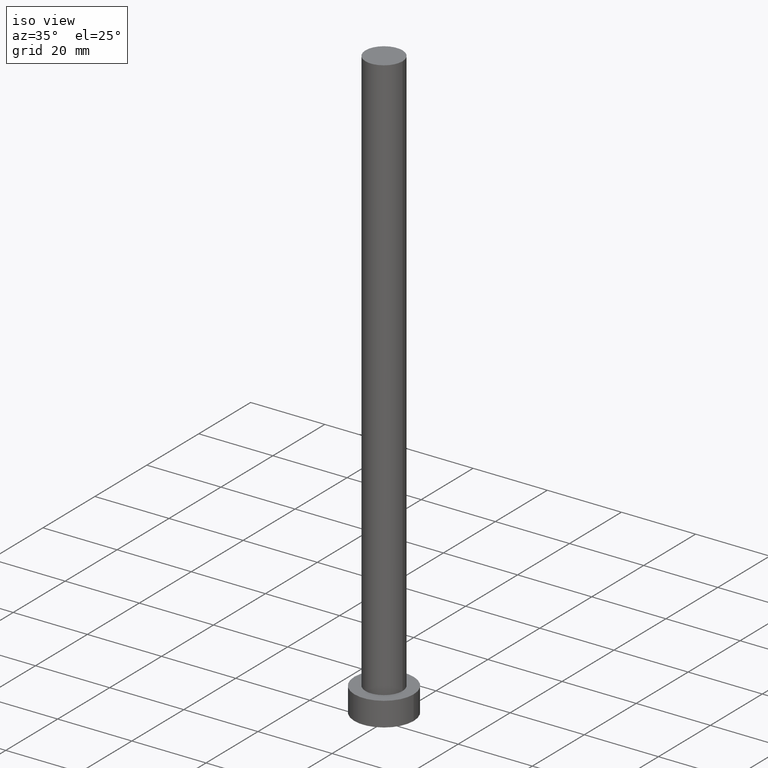
[diagram: clean part render]
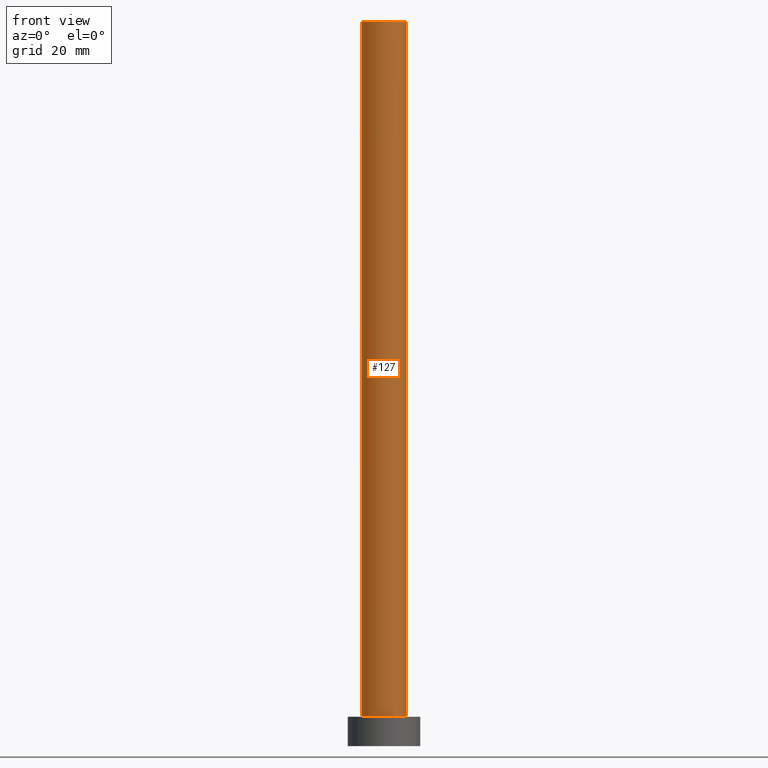
[diagram: tour spotlight — one face highlighted and labeled with its STEP entity id]
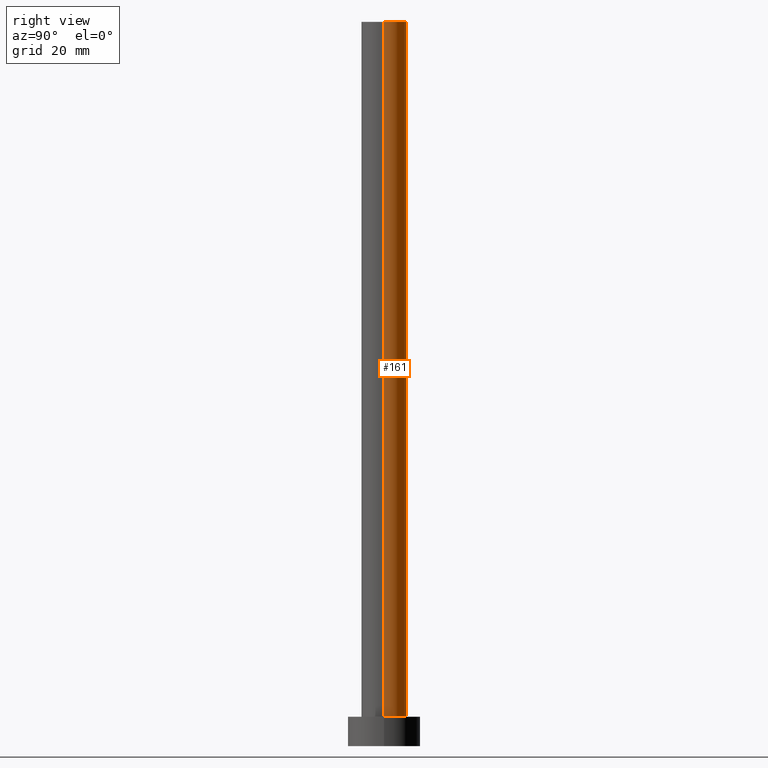
[diagram: tour spotlight — one face highlighted and labeled with its STEP entity id]
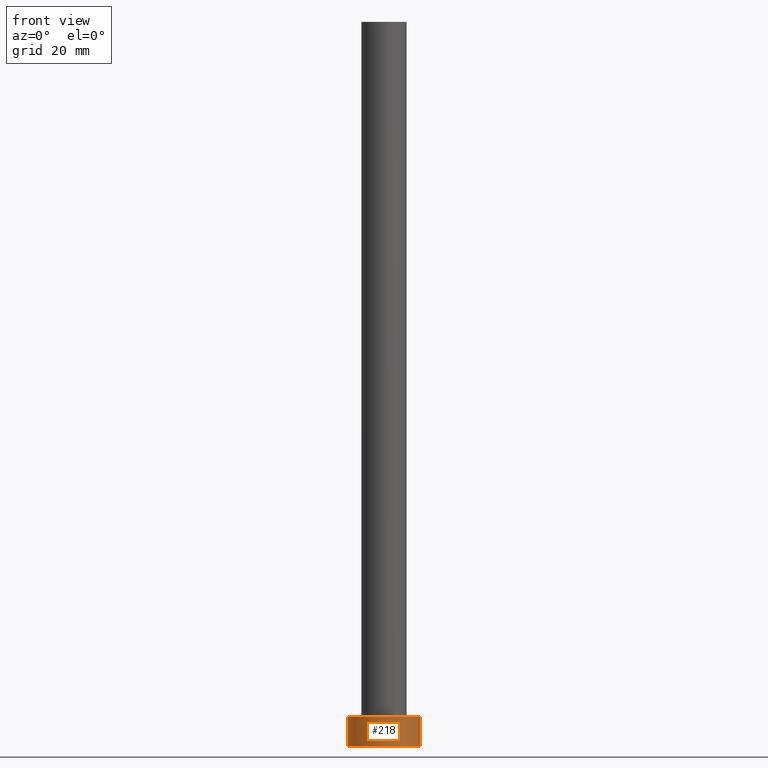
[diagram: tour spotlight — one face highlighted and labeled with its STEP entity id]
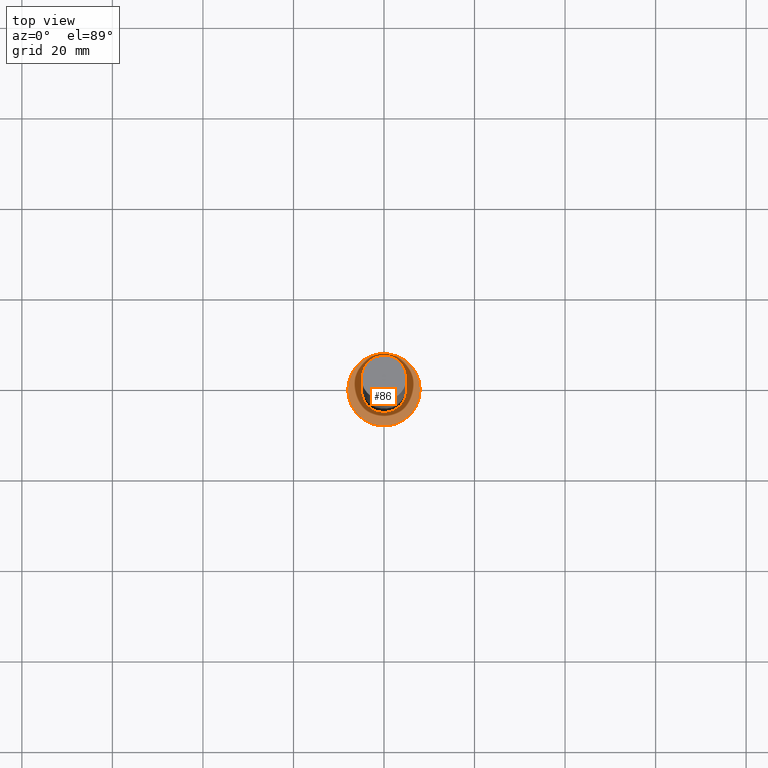
[diagram: tour spotlight — one face highlighted and labeled with its STEP entity id]
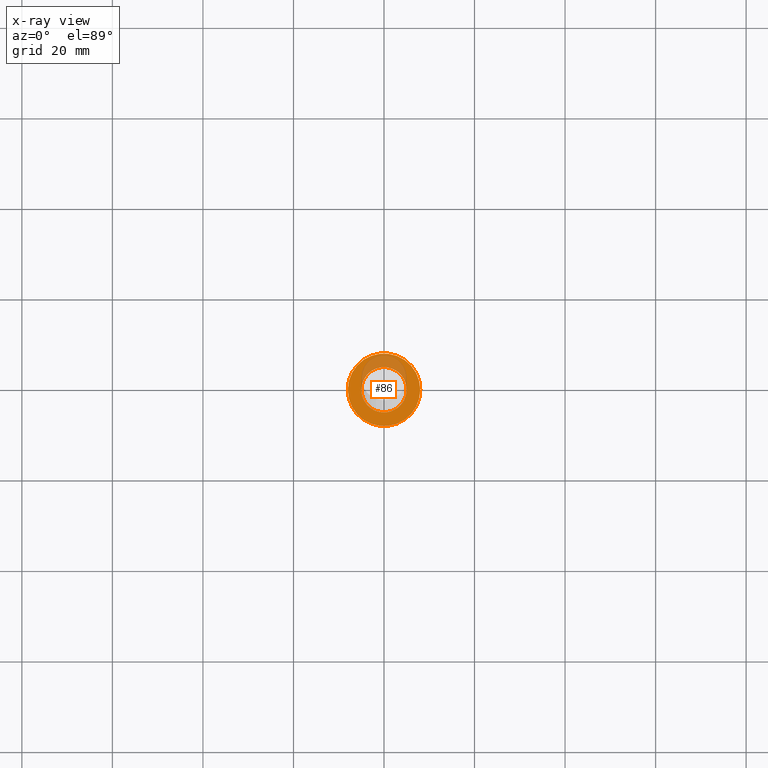
[diagram: x-ray of the same camera — body ghosted, this tour face saturated]
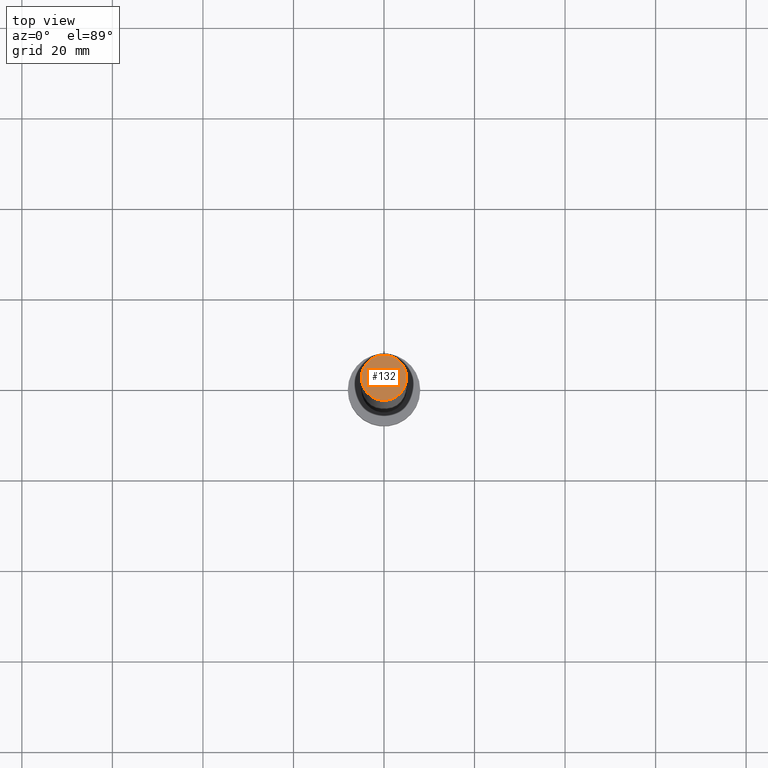
[diagram: tour spotlight — one face highlighted and labeled with its STEP entity id]
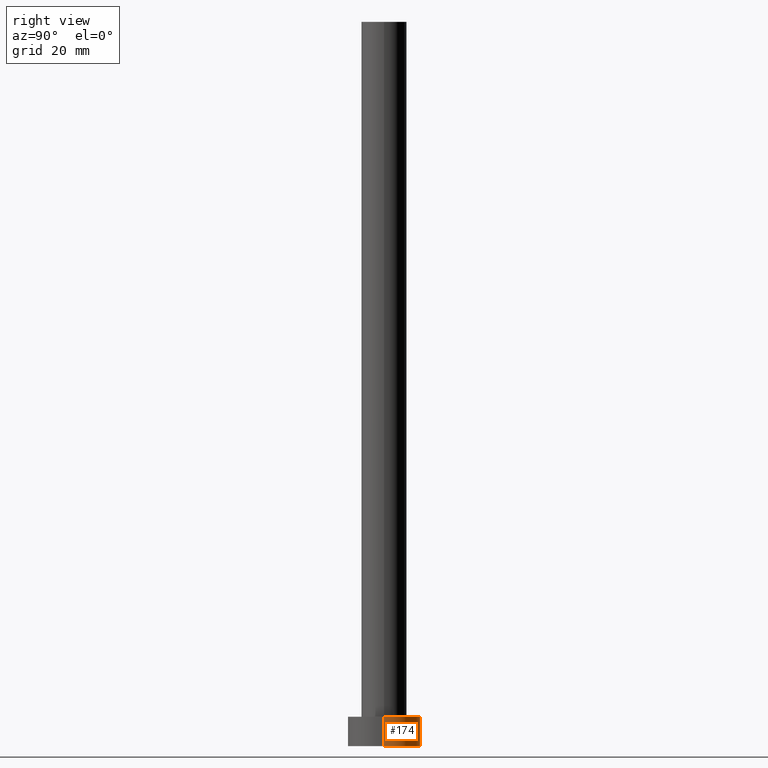
[diagram: tour spotlight — one face highlighted and labeled with its STEP entity id]
A machine part: a face-by-face anatomy tour. The part has 7 B-rep faces; the first image is the clean iso view, then the 6 largest visible faces are spotlighted one at a time (largest first), each with its STEP entity span.

Face 1 — front view, entity #127. In plain terms, the highlighted cylindrical surface (edge-blend (fillet) strip) has radius 5 mm, axis along (-0, -0, -1).
Definition (entity closure, byte-faithful):
#2 = CARTESIAN_POINT ( 'NONE',  ( 0.000000000000000000, 0.000000000000000000, 6.500000000000000000 ) ) ;
#11 = ORIENTED_EDGE ( 'NONE', *, *, #236, .F. ) ;
#28 = VECTOR ( 'NONE', #46, 1000.000000000000000 ) ;
#44 = ORIENTED_EDGE ( 'NONE', *, *, #188, .F. ) ;
#46 = DIRECTION ( 'NONE',  ( -0.000000000000000000, -0.000000000000000000, -1.000000000000000000 ) ) ;
#63 = DIRECTION ( 'NONE',  ( 0.000000000000000000, 0.000000000000000000, 1.000000000000000000 ) ) ;
#65 = CIRCLE ( 'NONE', #93, 5.000000000000000888 ) ;
#67 = LINE ( 'NONE', #149, #28 ) ;
#74 = CARTESIAN_POINT ( 'NONE',  ( -5.000000000000000888, 0.000000000000000000, 160.0000000000000000 ) ) ;
#75 = VERTEX_POINT ( 'NONE', #87 ) ;
#81 = DIRECTION ( 'NONE',  ( -0.000000000000000000, -0.000000000000000000, -1.000000000000000000 ) ) ;
#84 = CARTESIAN_POINT ( 'NONE',  ( 0.000000000000000000, 0.000000000000000000, 160.0000000000000000 ) ) ;
#87 = CARTESIAN_POINT ( 'NONE',  ( -5.000000000000000888, 0.000000000000000000, 6.500000000000000000 ) ) ;
#93 = AXIS2_PLACEMENT_3D ( 'NONE', #2, #63, #133 ) ;
#95 = CARTESIAN_POINT ( 'NONE',  ( -5.000000000000000888, 0.000000000000000000, 160.0000000000000000 ) ) ;
#99 = EDGE_CURVE ( 'NONE', #75, #224, #65, .T. ) ;
#101 = ORIENTED_EDGE ( 'NONE', *, *, #99, .T. ) ;
#103 = CIRCLE ( 'NONE', #187, 5.000000000000000888 ) ;
#106 = VERTEX_POINT ( 'NONE', #74 ) ;
#113 = DIRECTION ( 'NONE',  ( -0.000000000000000000, -0.000000000000000000, -1.000000000000000000 ) ) ;
#124 = VERTEX_POINT ( 'NONE', #254 ) ;
#127 = ADVANCED_FACE ( 'NONE', ( #180 ), #220, .T. ) ;
#130 = CARTESIAN_POINT ( 'NONE',  ( 5.000000000000000888, 6.123233995736767268E-16, 6.500000000000000000 ) ) ;
#133 = DIRECTION ( 'NONE',  ( 1.000000000000000000, 0.000000000000000000, 0.000000000000000000 ) ) ;
#142 = EDGE_CURVE ( 'NONE', #106, #75, #182, .T. ) ;
#149 = CARTESIAN_POINT ( 'NONE',  ( 5.000000000000000888, 6.123233995736767268E-16, 160.0000000000000000 ) ) ;
#157 = DIRECTION ( 'NONE',  ( -1.000000000000000000, 0.000000000000000000, 0.000000000000000000 ) ) ;
#158 = ORIENTED_EDGE ( 'NONE', *, *, #142, .T. ) ;
#167 = DIRECTION ( 'NONE',  ( 1.000000000000000000, 0.000000000000000000, 0.000000000000000000 ) ) ;
#180 = FACE_OUTER_BOUND ( 'NONE', #240, .T. ) ;
#182 = LINE ( 'NONE', #95, #241 ) ;
#187 = AXIS2_PLACEMENT_3D ( 'NONE', #84, #205, #167 ) ;
#188 = EDGE_CURVE ( 'NONE', #106, #124, #103, .T. ) ;
#196 = CARTESIAN_POINT ( 'NONE',  ( 0.000000000000000000, 0.000000000000000000, 160.0000000000000000 ) ) ;
#205 = DIRECTION ( 'NONE',  ( 0.000000000000000000, 0.000000000000000000, 1.000000000000000000 ) ) ;
#220 = CYLINDRICAL_SURFACE ( 'NONE', #223, 5.000000000000000888 ) ;
#223 = AXIS2_PLACEMENT_3D ( 'NONE', #196, #113, #157 ) ;
#224 = VERTEX_POINT ( 'NONE', #130 ) ;
#236 = EDGE_CURVE ( 'NONE', #124, #224, #67, .T. ) ;
#240 = EDGE_LOOP ( 'NONE', ( #11, #44, #158, #101 ) ) ;
#241 = VECTOR ( 'NONE', #81, 1000.000000000000000 ) ;
#254 = CARTESIAN_POINT ( 'NONE',  ( 5.000000000000000888, 6.123233995736767268E-16, 160.0000000000000000 ) ) ;

Face 2 — right view, entity #161. In plain terms, the highlighted cylindrical surface (edge-blend (fillet) strip) has radius 5 mm, axis along (-0, -0, -1).
Definition (entity closure, byte-faithful):
#4 = AXIS2_PLACEMENT_3D ( 'NONE', #12, #126, #26 ) ;
#5 = DIRECTION ( 'NONE',  ( -0.000000000000000000, -0.000000000000000000, -1.000000000000000000 ) ) ;
#7 = CIRCLE ( 'NONE', #4, 5.000000000000000888 ) ;
#12 = CARTESIAN_POINT ( 'NONE',  ( 0.000000000000000000, 0.000000000000000000, 160.0000000000000000 ) ) ;
#25 = CYLINDRICAL_SURFACE ( 'NONE', #50, 5.000000000000000888 ) ;
#26 = DIRECTION ( 'NONE',  ( 1.000000000000000000, 0.000000000000000000, 0.000000000000000000 ) ) ;
#28 = VECTOR ( 'NONE', #46, 1000.000000000000000 ) ;
#41 = FACE_OUTER_BOUND ( 'NONE', #85, .T. ) ;
#46 = DIRECTION ( 'NONE',  ( -0.000000000000000000, -0.000000000000000000, -1.000000000000000000 ) ) ;
#50 = AXIS2_PLACEMENT_3D ( 'NONE', #119, #5, #245 ) ;
#56 = ORIENTED_EDGE ( 'NONE', *, *, #142, .F. ) ;
#67 = LINE ( 'NONE', #149, #28 ) ;
#74 = CARTESIAN_POINT ( 'NONE',  ( -5.000000000000000888, 0.000000000000000000, 160.0000000000000000 ) ) ;
#75 = VERTEX_POINT ( 'NONE', #87 ) ;
#81 = DIRECTION ( 'NONE',  ( -0.000000000000000000, -0.000000000000000000, -1.000000000000000000 ) ) ;
#85 = EDGE_LOOP ( 'NONE', ( #214, #121, #212, #56 ) ) ;
#87 = CARTESIAN_POINT ( 'NONE',  ( -5.000000000000000888, 0.000000000000000000, 6.500000000000000000 ) ) ;
#95 = CARTESIAN_POINT ( 'NONE',  ( -5.000000000000000888, 0.000000000000000000, 160.0000000000000000 ) ) ;
#98 = DIRECTION ( 'NONE',  ( 0.000000000000000000, 0.000000000000000000, 1.000000000000000000 ) ) ;
#106 = VERTEX_POINT ( 'NONE', #74 ) ;
#119 = CARTESIAN_POINT ( 'NONE',  ( 0.000000000000000000, 0.000000000000000000, 160.0000000000000000 ) ) ;
#121 = ORIENTED_EDGE ( 'NONE', *, *, #236, .T. ) ;
#124 = VERTEX_POINT ( 'NONE', #254 ) ;
#126 = DIRECTION ( 'NONE',  ( 0.000000000000000000, 0.000000000000000000, 1.000000000000000000 ) ) ;
#130 = CARTESIAN_POINT ( 'NONE',  ( 5.000000000000000888, 6.123233995736767268E-16, 6.500000000000000000 ) ) ;
#137 = CARTESIAN_POINT ( 'NONE',  ( 0.000000000000000000, 0.000000000000000000, 6.500000000000000000 ) ) ;
#138 = EDGE_CURVE ( 'NONE', #224, #75, #215, .T. ) ;
#142 = EDGE_CURVE ( 'NONE', #106, #75, #182, .T. ) ;
#149 = CARTESIAN_POINT ( 'NONE',  ( 5.000000000000000888, 6.123233995736767268E-16, 160.0000000000000000 ) ) ;
#161 = ADVANCED_FACE ( 'NONE', ( #41 ), #25, .T. ) ;
#163 = AXIS2_PLACEMENT_3D ( 'NONE', #137, #98, #219 ) ;
#176 = EDGE_CURVE ( 'NONE', #124, #106, #7, .T. ) ;
#182 = LINE ( 'NONE', #95, #241 ) ;
#212 = ORIENTED_EDGE ( 'NONE', *, *, #138, .T. ) ;
#214 = ORIENTED_EDGE ( 'NONE', *, *, #176, .F. ) ;
#215 = CIRCLE ( 'NONE', #163, 5.000000000000000888 ) ;
#219 = DIRECTION ( 'NONE',  ( 1.000000000000000000, 0.000000000000000000, 0.000000000000000000 ) ) ;
#224 = VERTEX_POINT ( 'NONE', #130 ) ;
#236 = EDGE_CURVE ( 'NONE', #124, #224, #67, .T. ) ;
#241 = VECTOR ( 'NONE', #81, 1000.000000000000000 ) ;
#245 = DIRECTION ( 'NONE',  ( -1.000000000000000000, 0.000000000000000000, 0.000000000000000000 ) ) ;
#254 = CARTESIAN_POINT ( 'NONE',  ( 5.000000000000000888, 6.123233995736767268E-16, 160.0000000000000000 ) ) ;

Face 3 — front view, entity #218. In plain terms, the highlighted cylindrical surface (edge-blend (fillet) strip) has radius 8 mm, axis along (-0, -0, -1).
Definition (entity closure, byte-faithful):
#1 = EDGE_CURVE ( 'NONE', #134, #72, #242, .T. ) ;
#6 = DIRECTION ( 'NONE',  ( -0.000000000000000000, -0.000000000000000000, -1.000000000000000000 ) ) ;
#9 = ORIENTED_EDGE ( 'NONE', *, *, #55, .F. ) ;
#22 = CARTESIAN_POINT ( 'NONE',  ( -8.000000000000000000, 0.000000000000000000, 0.000000000000000000 ) ) ;
#29 = CARTESIAN_POINT ( 'NONE',  ( -8.000000000000000000, 0.000000000000000000, 6.500000000000000000 ) ) ;
#30 = CARTESIAN_POINT ( 'NONE',  ( 0.000000000000000000, 0.000000000000000000, 0.000000000000000000 ) ) ;
#34 = ORIENTED_EDGE ( 'NONE', *, *, #1, .T. ) ;
#43 = EDGE_CURVE ( 'NONE', #61, #134, #208, .T. ) ;
#48 = CARTESIAN_POINT ( 'NONE',  ( 0.000000000000000000, 0.000000000000000000, 6.500000000000000000 ) ) ;
#49 = DIRECTION ( 'NONE',  ( -1.000000000000000000, 0.000000000000000000, 0.000000000000000000 ) ) ;
#51 = AXIS2_PLACEMENT_3D ( 'NONE', #48, #52, #53 ) ;
#52 = DIRECTION ( 'NONE',  ( 0.000000000000000000, 0.000000000000000000, 1.000000000000000000 ) ) ;
#53 = DIRECTION ( 'NONE',  ( 1.000000000000000000, 0.000000000000000000, 0.000000000000000000 ) ) ;
#55 = EDGE_CURVE ( 'NONE', #68, #72, #152, .T. ) ;
#61 = VERTEX_POINT ( 'NONE', #150 ) ;
#64 = EDGE_CURVE ( 'NONE', #61, #68, #209, .T. ) ;
#66 = VECTOR ( 'NONE', #192, 1000.000000000000000 ) ;
#68 = VERTEX_POINT ( 'NONE', #189 ) ;
#70 = CARTESIAN_POINT ( 'NONE',  ( 8.000000000000000000, 9.797174393178823685E-16, 0.000000000000000000 ) ) ;
#71 = CYLINDRICAL_SURFACE ( 'NONE', #143, 8.000000000000000000 ) ;
#72 = VERTEX_POINT ( 'NONE', #70 ) ;
#109 = DIRECTION ( 'NONE',  ( -0.000000000000000000, -0.000000000000000000, -1.000000000000000000 ) ) ;
#129 = AXIS2_PLACEMENT_3D ( 'NONE', #30, #186, #251 ) ;
#134 = VERTEX_POINT ( 'NONE', #22 ) ;
#143 = AXIS2_PLACEMENT_3D ( 'NONE', #231, #6, #49 ) ;
#148 = ORIENTED_EDGE ( 'NONE', *, *, #43, .T. ) ;
#150 = CARTESIAN_POINT ( 'NONE',  ( -8.000000000000000000, 0.000000000000000000, 6.500000000000000000 ) ) ;
#152 = LINE ( 'NONE', #225, #66 ) ;
#169 = ORIENTED_EDGE ( 'NONE', *, *, #64, .F. ) ;
#171 = FACE_OUTER_BOUND ( 'NONE', #248, .T. ) ;
#178 = VECTOR ( 'NONE', #109, 1000.000000000000000 ) ;
#186 = DIRECTION ( 'NONE',  ( 0.000000000000000000, 0.000000000000000000, 1.000000000000000000 ) ) ;
#189 = CARTESIAN_POINT ( 'NONE',  ( 8.000000000000000000, 9.797174393178823685E-16, 6.500000000000000000 ) ) ;
#192 = DIRECTION ( 'NONE',  ( -0.000000000000000000, -0.000000000000000000, -1.000000000000000000 ) ) ;
#208 = LINE ( 'NONE', #29, #178 ) ;
#209 = CIRCLE ( 'NONE', #51, 8.000000000000000000 ) ;
#218 = ADVANCED_FACE ( 'NONE', ( #171 ), #71, .T. ) ;
#225 = CARTESIAN_POINT ( 'NONE',  ( 8.000000000000000000, 9.797174393178823685E-16, 6.500000000000000000 ) ) ;
#231 = CARTESIAN_POINT ( 'NONE',  ( 0.000000000000000000, 0.000000000000000000, 6.500000000000000000 ) ) ;
#242 = CIRCLE ( 'NONE', #129, 8.000000000000000000 ) ;
#248 = EDGE_LOOP ( 'NONE', ( #9, #169, #148, #34 ) ) ;
#251 = DIRECTION ( 'NONE',  ( 1.000000000000000000, 0.000000000000000000, 0.000000000000000000 ) ) ;

Face 4 — top view, entity #86. An x-ray twin of the same camera follows (body ghosted, this face saturated) — the face is partly hidden behind the body. In plain terms, the highlighted planar face has unit normal (0, 0, 1).
Definition (entity closure, byte-faithful):
#2 = CARTESIAN_POINT ( 'NONE',  ( 0.000000000000000000, 0.000000000000000000, 6.500000000000000000 ) ) ;
#14 = AXIS2_PLACEMENT_3D ( 'NONE', #247, #249, #108 ) ;
#27 = EDGE_CURVE ( 'NONE', #68, #61, #144, .T. ) ;
#37 = DIRECTION ( 'NONE',  ( 0.000000000000000000, 0.000000000000000000, 1.000000000000000000 ) ) ;
#48 = CARTESIAN_POINT ( 'NONE',  ( 0.000000000000000000, 0.000000000000000000, 6.500000000000000000 ) ) ;
#51 = AXIS2_PLACEMENT_3D ( 'NONE', #48, #52, #53 ) ;
#52 = DIRECTION ( 'NONE',  ( 0.000000000000000000, 0.000000000000000000, 1.000000000000000000 ) ) ;
#53 = DIRECTION ( 'NONE',  ( 1.000000000000000000, 0.000000000000000000, 0.000000000000000000 ) ) ;
#58 = PLANE ( 'NONE',  #204 ) ;
#61 = VERTEX_POINT ( 'NONE', #150 ) ;
#63 = DIRECTION ( 'NONE',  ( 0.000000000000000000, 0.000000000000000000, 1.000000000000000000 ) ) ;
#64 = EDGE_CURVE ( 'NONE', #61, #68, #209, .T. ) ;
#65 = CIRCLE ( 'NONE', #93, 5.000000000000000888 ) ;
#68 = VERTEX_POINT ( 'NONE', #189 ) ;
#75 = VERTEX_POINT ( 'NONE', #87 ) ;
#80 = EDGE_LOOP ( 'NONE', ( #94, #255 ) ) ;
#86 = ADVANCED_FACE ( 'NONE', ( #221, #235 ), #58, .T. ) ;
#87 = CARTESIAN_POINT ( 'NONE',  ( -5.000000000000000888, 0.000000000000000000, 6.500000000000000000 ) ) ;
#89 = ORIENTED_EDGE ( 'NONE', *, *, #64, .T. ) ;
#93 = AXIS2_PLACEMENT_3D ( 'NONE', #2, #63, #133 ) ;
#94 = ORIENTED_EDGE ( 'NONE', *, *, #99, .F. ) ;
#98 = DIRECTION ( 'NONE',  ( 0.000000000000000000, 0.000000000000000000, 1.000000000000000000 ) ) ;
#99 = EDGE_CURVE ( 'NONE', #75, #224, #65, .T. ) ;
#108 = DIRECTION ( 'NONE',  ( 1.000000000000000000, 0.000000000000000000, 0.000000000000000000 ) ) ;
#130 = CARTESIAN_POINT ( 'NONE',  ( 5.000000000000000888, 6.123233995736767268E-16, 6.500000000000000000 ) ) ;
#133 = DIRECTION ( 'NONE',  ( 1.000000000000000000, 0.000000000000000000, 0.000000000000000000 ) ) ;
#137 = CARTESIAN_POINT ( 'NONE',  ( 0.000000000000000000, 0.000000000000000000, 6.500000000000000000 ) ) ;
#138 = EDGE_CURVE ( 'NONE', #224, #75, #215, .T. ) ;
#144 = CIRCLE ( 'NONE', #14, 8.000000000000000000 ) ;
#150 = CARTESIAN_POINT ( 'NONE',  ( -8.000000000000000000, 0.000000000000000000, 6.500000000000000000 ) ) ;
#163 = AXIS2_PLACEMENT_3D ( 'NONE', #137, #98, #219 ) ;
#175 = CARTESIAN_POINT ( 'NONE',  ( 0.000000000000000000, 0.000000000000000000, 6.500000000000000000 ) ) ;
#179 = EDGE_LOOP ( 'NONE', ( #89, #252 ) ) ;
#189 = CARTESIAN_POINT ( 'NONE',  ( 8.000000000000000000, 9.797174393178823685E-16, 6.500000000000000000 ) ) ;
#194 = DIRECTION ( 'NONE',  ( 1.000000000000000000, 0.000000000000000000, -0.000000000000000000 ) ) ;
#204 = AXIS2_PLACEMENT_3D ( 'NONE', #175, #37, #194 ) ;
#209 = CIRCLE ( 'NONE', #51, 8.000000000000000000 ) ;
#215 = CIRCLE ( 'NONE', #163, 5.000000000000000888 ) ;
#219 = DIRECTION ( 'NONE',  ( 1.000000000000000000, 0.000000000000000000, 0.000000000000000000 ) ) ;
#221 = FACE_BOUND ( 'NONE', #80, .T. ) ;
#224 = VERTEX_POINT ( 'NONE', #130 ) ;
#235 = FACE_OUTER_BOUND ( 'NONE', #179, .T. ) ;
#247 = CARTESIAN_POINT ( 'NONE',  ( 0.000000000000000000, 0.000000000000000000, 6.500000000000000000 ) ) ;
#249 = DIRECTION ( 'NONE',  ( 0.000000000000000000, 0.000000000000000000, 1.000000000000000000 ) ) ;
#252 = ORIENTED_EDGE ( 'NONE', *, *, #27, .T. ) ;
#255 = ORIENTED_EDGE ( 'NONE', *, *, #138, .F. ) ;

Face 5 — top view, entity #132. In plain terms, the highlighted planar face has unit normal (0, 0, 1).
Definition (entity closure, byte-faithful):
#4 = AXIS2_PLACEMENT_3D ( 'NONE', #12, #126, #26 ) ;
#7 = CIRCLE ( 'NONE', #4, 5.000000000000000888 ) ;
#12 = CARTESIAN_POINT ( 'NONE',  ( 0.000000000000000000, 0.000000000000000000, 160.0000000000000000 ) ) ;
#21 = ORIENTED_EDGE ( 'NONE', *, *, #188, .T. ) ;
#26 = DIRECTION ( 'NONE',  ( 1.000000000000000000, 0.000000000000000000, 0.000000000000000000 ) ) ;
#33 = AXIS2_PLACEMENT_3D ( 'NONE', #39, #118, #57 ) ;
#39 = CARTESIAN_POINT ( 'NONE',  ( 0.000000000000000000, 0.000000000000000000, 160.0000000000000000 ) ) ;
#57 = DIRECTION ( 'NONE',  ( 1.000000000000000000, 0.000000000000000000, -0.000000000000000000 ) ) ;
#74 = CARTESIAN_POINT ( 'NONE',  ( -5.000000000000000888, 0.000000000000000000, 160.0000000000000000 ) ) ;
#84 = CARTESIAN_POINT ( 'NONE',  ( 0.000000000000000000, 0.000000000000000000, 160.0000000000000000 ) ) ;
#103 = CIRCLE ( 'NONE', #187, 5.000000000000000888 ) ;
#105 = EDGE_LOOP ( 'NONE', ( #21, #237 ) ) ;
#106 = VERTEX_POINT ( 'NONE', #74 ) ;
#118 = DIRECTION ( 'NONE',  ( 0.000000000000000000, 0.000000000000000000, 1.000000000000000000 ) ) ;
#124 = VERTEX_POINT ( 'NONE', #254 ) ;
#126 = DIRECTION ( 'NONE',  ( 0.000000000000000000, 0.000000000000000000, 1.000000000000000000 ) ) ;
#132 = ADVANCED_FACE ( 'NONE', ( #160 ), #233, .T. ) ;
#160 = FACE_OUTER_BOUND ( 'NONE', #105, .T. ) ;
#167 = DIRECTION ( 'NONE',  ( 1.000000000000000000, 0.000000000000000000, 0.000000000000000000 ) ) ;
#176 = EDGE_CURVE ( 'NONE', #124, #106, #7, .T. ) ;
#187 = AXIS2_PLACEMENT_3D ( 'NONE', #84, #205, #167 ) ;
#188 = EDGE_CURVE ( 'NONE', #106, #124, #103, .T. ) ;
#205 = DIRECTION ( 'NONE',  ( 0.000000000000000000, 0.000000000000000000, 1.000000000000000000 ) ) ;
#233 = PLANE ( 'NONE',  #33 ) ;
#237 = ORIENTED_EDGE ( 'NONE', *, *, #176, .T. ) ;
#254 = CARTESIAN_POINT ( 'NONE',  ( 5.000000000000000888, 6.123233995736767268E-16, 160.0000000000000000 ) ) ;

Face 6 — right view, entity #174. In plain terms, the highlighted cylindrical surface (edge-blend (fillet) strip) has radius 8 mm, axis along (-0, -0, -1).
Definition (entity closure, byte-faithful):
#14 = AXIS2_PLACEMENT_3D ( 'NONE', #247, #249, #108 ) ;
#22 = CARTESIAN_POINT ( 'NONE',  ( -8.000000000000000000, 0.000000000000000000, 0.000000000000000000 ) ) ;
#27 = EDGE_CURVE ( 'NONE', #68, #61, #144, .T. ) ;
#29 = CARTESIAN_POINT ( 'NONE',  ( -8.000000000000000000, 0.000000000000000000, 6.500000000000000000 ) ) ;
#32 = ORIENTED_EDGE ( 'NONE', *, *, #55, .T. ) ;
#43 = EDGE_CURVE ( 'NONE', #61, #134, #208, .T. ) ;
#55 = EDGE_CURVE ( 'NONE', #68, #72, #152, .T. ) ;
#60 = AXIS2_PLACEMENT_3D ( 'NONE', #227, #151, #229 ) ;
#61 = VERTEX_POINT ( 'NONE', #150 ) ;
#66 = VECTOR ( 'NONE', #192, 1000.000000000000000 ) ;
#68 = VERTEX_POINT ( 'NONE', #189 ) ;
#70 = CARTESIAN_POINT ( 'NONE',  ( 8.000000000000000000, 9.797174393178823685E-16, 0.000000000000000000 ) ) ;
#72 = VERTEX_POINT ( 'NONE', #70 ) ;
#77 = EDGE_CURVE ( 'NONE', #72, #134, #250, .T. ) ;
#78 = CYLINDRICAL_SURFACE ( 'NONE', #79, 8.000000000000000000 ) ;
#79 = AXIS2_PLACEMENT_3D ( 'NONE', #190, #107, #246 ) ;
#107 = DIRECTION ( 'NONE',  ( -0.000000000000000000, -0.000000000000000000, -1.000000000000000000 ) ) ;
#108 = DIRECTION ( 'NONE',  ( 1.000000000000000000, 0.000000000000000000, 0.000000000000000000 ) ) ;
#109 = DIRECTION ( 'NONE',  ( -0.000000000000000000, -0.000000000000000000, -1.000000000000000000 ) ) ;
#131 = ORIENTED_EDGE ( 'NONE', *, *, #27, .F. ) ;
#134 = VERTEX_POINT ( 'NONE', #22 ) ;
#144 = CIRCLE ( 'NONE', #14, 8.000000000000000000 ) ;
#150 = CARTESIAN_POINT ( 'NONE',  ( -8.000000000000000000, 0.000000000000000000, 6.500000000000000000 ) ) ;
#151 = DIRECTION ( 'NONE',  ( 0.000000000000000000, 0.000000000000000000, 1.000000000000000000 ) ) ;
#152 = LINE ( 'NONE', #225, #66 ) ;
#155 = ORIENTED_EDGE ( 'NONE', *, *, #43, .F. ) ;
#165 = EDGE_LOOP ( 'NONE', ( #131, #32, #210, #155 ) ) ;
#174 = ADVANCED_FACE ( 'NONE', ( #183 ), #78, .T. ) ;
#178 = VECTOR ( 'NONE', #109, 1000.000000000000000 ) ;
#183 = FACE_OUTER_BOUND ( 'NONE', #165, .T. ) ;
#189 = CARTESIAN_POINT ( 'NONE',  ( 8.000000000000000000, 9.797174393178823685E-16, 6.500000000000000000 ) ) ;
#190 = CARTESIAN_POINT ( 'NONE',  ( 0.000000000000000000, 0.000000000000000000, 6.500000000000000000 ) ) ;
#192 = DIRECTION ( 'NONE',  ( -0.000000000000000000, -0.000000000000000000, -1.000000000000000000 ) ) ;
#208 = LINE ( 'NONE', #29, #178 ) ;
#210 = ORIENTED_EDGE ( 'NONE', *, *, #77, .T. ) ;
#225 = CARTESIAN_POINT ( 'NONE',  ( 8.000000000000000000, 9.797174393178823685E-16, 6.500000000000000000 ) ) ;
#227 = CARTESIAN_POINT ( 'NONE',  ( 0.000000000000000000, 0.000000000000000000, 0.000000000000000000 ) ) ;
#229 = DIRECTION ( 'NONE',  ( 1.000000000000000000, 0.000000000000000000, 0.000000000000000000 ) ) ;
#246 = DIRECTION ( 'NONE',  ( -1.000000000000000000, 0.000000000000000000, 0.000000000000000000 ) ) ;
#247 = CARTESIAN_POINT ( 'NONE',  ( 0.000000000000000000, 0.000000000000000000, 6.500000000000000000 ) ) ;
#249 = DIRECTION ( 'NONE',  ( 0.000000000000000000, 0.000000000000000000, 1.000000000000000000 ) ) ;
#250 = CIRCLE ( 'NONE', #60, 8.000000000000000000 ) ;